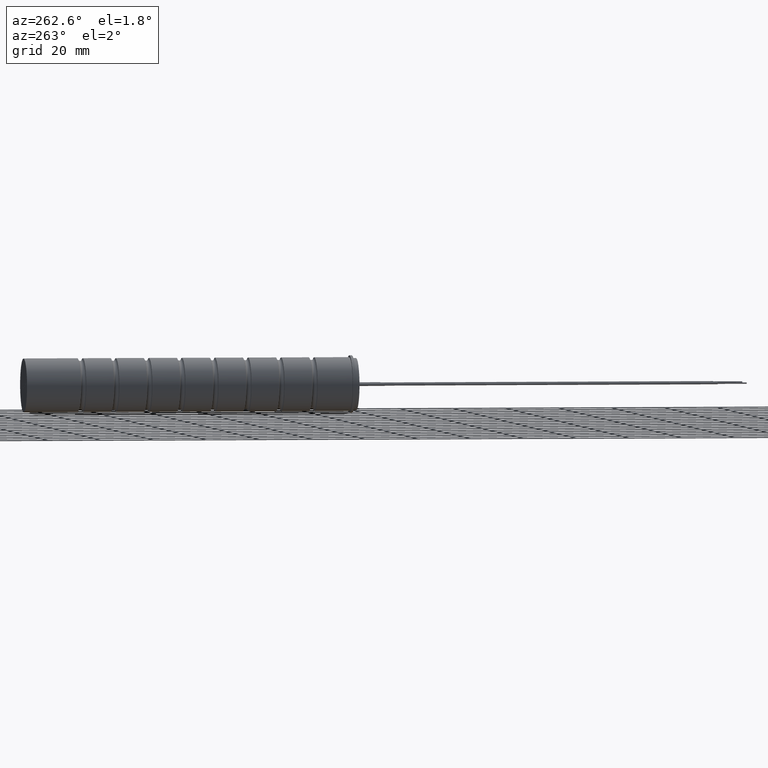
[diagram: clean part render]
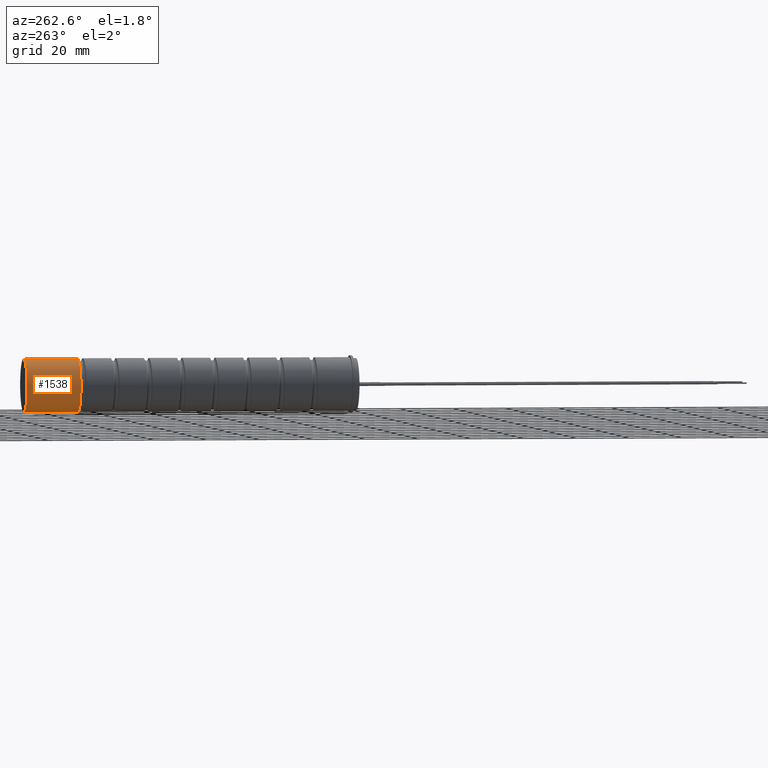
[diagram: same view with one face highlighted and labeled with its STEP entity id]
A machine part, auxiliary view. The second image highlights one B-rep face of the part: STEP entity #1538.
In plain terms, the highlighted cylindrical surface (edge-blend (fillet) strip) has radius 10.15 mm, axis along (-0, -1, -0).
Its self-contained STEP definition (entity closure, byte-faithful):
#54 = DIRECTION ( 'NONE',  ( 0.0000000000000000000, 1.000000000000000000, 0.0000000000000000000 ) ) ;
#320 = ORIENTED_EDGE ( 'NONE', *, *, #4409, .F. ) ;
#326 = ORIENTED_EDGE ( 'NONE', *, *, #2408, .F. ) ;
#480 = CARTESIAN_POINT ( 'NONE',  ( 0.0000000000000000000, 125.9000000000000100, -10.15000000000000000 ) ) ;
#714 = CARTESIAN_POINT ( 'NONE',  ( 0.0000000000000000000, 105.4817100000000200, -10.15000000000000000 ) ) ;
#719 = EDGE_CURVE ( 'NONE', #2358, #3341, #3253, .T. ) ;
#860 = DIRECTION ( 'NONE',  ( 0.0000000000000000000, 0.0000000000000000000, -1.000000000000000000 ) ) ;
#876 = CARTESIAN_POINT ( 'NONE',  ( 0.0000000000000000000, 125.9000000000000100, -10.15000000000000000 ) ) ;
#877 = VERTEX_POINT ( 'NONE', #714 ) ;
#957 = CARTESIAN_POINT ( 'NONE',  ( 1.243016501134563700E-015, 105.4817100000000200, 10.15000000000000000 ) ) ;
#1085 = ORIENTED_EDGE ( 'NONE', *, *, #719, .F. ) ;
#1131 = AXIS2_PLACEMENT_3D ( 'NONE', #1556, #1623, #860 ) ;
#1183 = DIRECTION ( 'NONE',  ( -0.0000000000000000000, -1.000000000000000000, -0.0000000000000000000 ) ) ;
#1229 = EDGE_LOOP ( 'NONE', ( #1085, #320, #3898, #326 ) ) ;
#1249 = DIRECTION ( 'NONE',  ( 0.0000000000000000000, 0.0000000000000000000, 1.000000000000000000 ) ) ;
#1302 = DIRECTION ( 'NONE',  ( -0.0000000000000000000, -1.000000000000000000, -0.0000000000000000000 ) ) ;
#1423 = CIRCLE ( 'NONE', #2060, 10.15000000000000000 ) ;
#1538 = ADVANCED_FACE ( 'NONE', ( #4844 ), #1904, .T. ) ;
#1556 = CARTESIAN_POINT ( 'NONE',  ( 0.0000000000000000000, 125.9000000000000100, 0.0000000000000000000 ) ) ;
#1623 = DIRECTION ( 'NONE',  ( -0.0000000000000000000, -1.000000000000000000, -0.0000000000000000000 ) ) ;
#1672 = VERTEX_POINT ( 'NONE', #876 ) ;
#1904 = CYLINDRICAL_SURFACE ( 'NONE', #1131, 10.15000000000000000 ) ;
#1963 = VECTOR ( 'NONE', #1302, 1000.000000000000000 ) ;
#2060 = AXIS2_PLACEMENT_3D ( 'NONE', #4568, #54, #1249 ) ;
#2272 = DIRECTION ( 'NONE',  ( -0.0000000000000000000, -1.000000000000000000, -0.0000000000000000000 ) ) ;
#2358 = VERTEX_POINT ( 'NONE', #3768 ) ;
#2408 = EDGE_CURVE ( 'NONE', #3341, #877, #4132, .T. ) ;
#2630 = CARTESIAN_POINT ( 'NONE',  ( 1.243016501134563700E-015, 125.9000000000000100, 10.15000000000000000 ) ) ;
#2688 = CARTESIAN_POINT ( 'NONE',  ( 0.0000000000000000000, 105.4817100000000200, 0.0000000000000000000 ) ) ;
#3066 = LINE ( 'NONE', #480, #1963 ) ;
#3095 = DIRECTION ( 'NONE',  ( 0.0000000000000000000, 0.0000000000000000000, -1.000000000000000000 ) ) ;
#3253 = LINE ( 'NONE', #2630, #3431 ) ;
#3341 = VERTEX_POINT ( 'NONE', #957 ) ;
#3431 = VECTOR ( 'NONE', #2272, 1000.000000000000000 ) ;
#3768 = CARTESIAN_POINT ( 'NONE',  ( 1.243016501134563700E-015, 125.9000000000000100, 10.15000000000000000 ) ) ;
#3898 = ORIENTED_EDGE ( 'NONE', *, *, #4433, .T. ) ;
#4132 = CIRCLE ( 'NONE', #4577, 10.15000000000000000 ) ;
#4409 = EDGE_CURVE ( 'NONE', #1672, #2358, #1423, .T. ) ;
#4433 = EDGE_CURVE ( 'NONE', #1672, #877, #3066, .T. ) ;
#4568 = CARTESIAN_POINT ( 'NONE',  ( 0.0000000000000000000, 125.9000000000000100, 0.0000000000000000000 ) ) ;
#4577 = AXIS2_PLACEMENT_3D ( 'NONE', #2688, #1183, #3095 ) ;
#4844 = FACE_OUTER_BOUND ( 'NONE', #1229, .T. ) ;